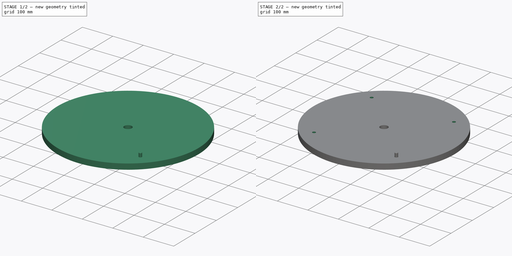
[diagram: build sequence overview — one tinted view per stage of 2, left to right]
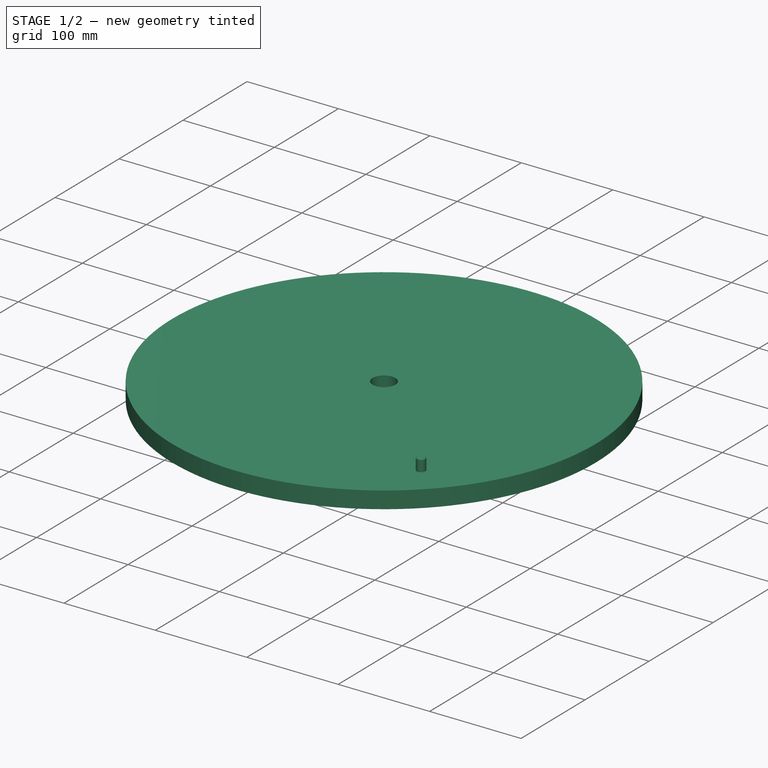
[diagram: stage 1 of 2 — iso view after this stage's code; geometry added in this stage tinted green]
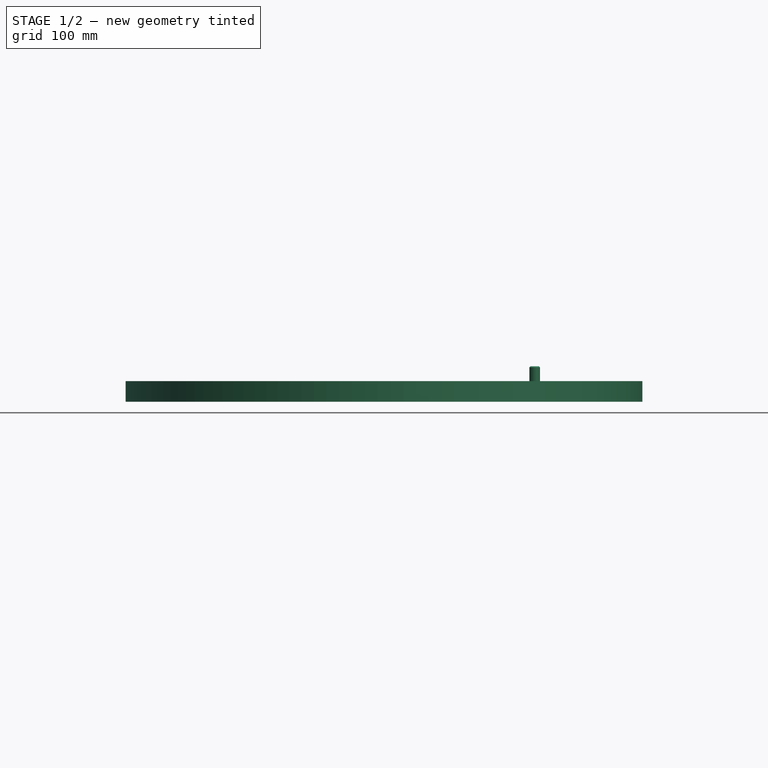
[diagram: stage 1 of 2 — front view after this stage's code; geometry added in this stage tinted green]
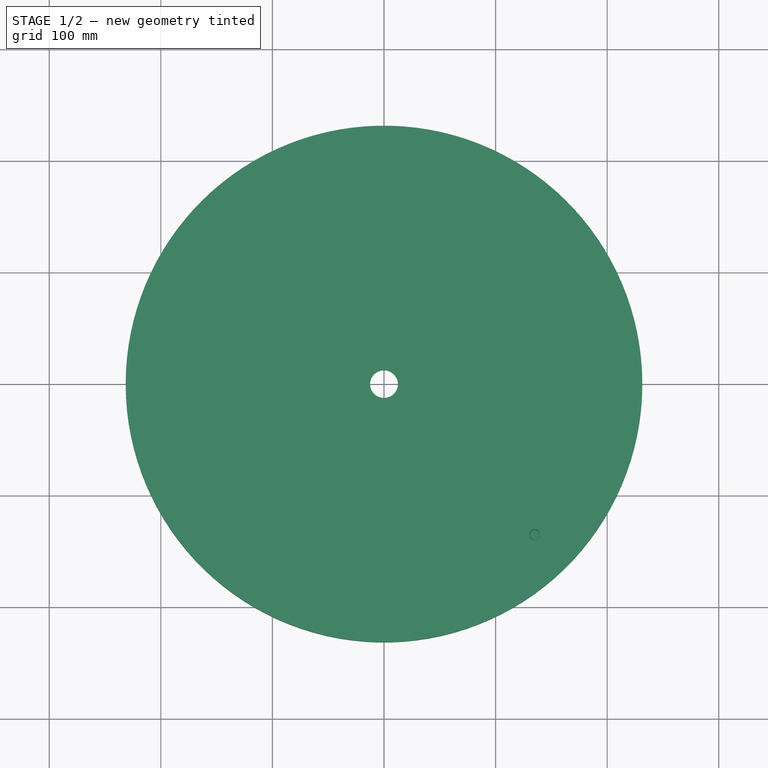
[diagram: stage 1 of 2 — top view after this stage's code; geometry added in this stage tinted green]
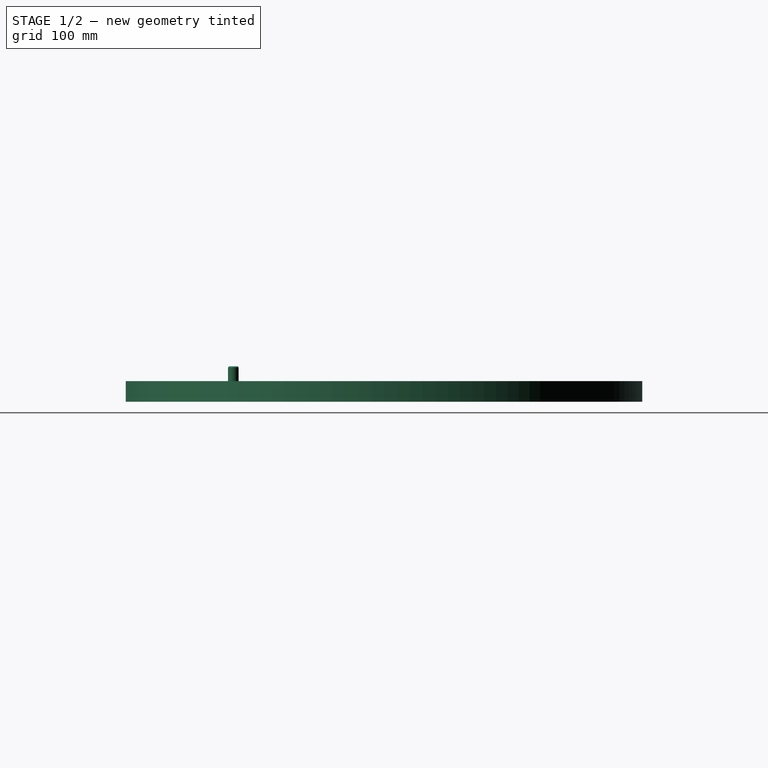
[diagram: stage 1 of 2 — right view after this stage's code; geometry added in this stage tinted green]
FCSTD DOCUMENT  (FreeCAD 0.20R29177 +426 (Git))
Label: CeilingPlate
License: All rights reserved
LicenseURL: http://en.wikipedia.org/wiki/All_rights_reserved
objects: App::DocumentObjectGroup×4, Sketcher::SketchObject×2, Part::FeaturePython×2, PartDesign::CoordinateSystem×1, App::FeaturePython×1, PartDesign::Pad×1, PartDesign::Hole×1, PartDesign::Body×1, App::Part×1
note: 10 computed .brp shape members not serialized (recipe doc carries the construction recipe); baked Part::Feature solids carry a one-line shape summary decoded from their .brp
EXTERNAL_REF file=Params.FCStd obj=Spreadsheet

FEATURE [App::DocumentObjectGroup] Parts
FEATURE [PartDesign::CoordinateSystem] LCS_Origin
  AttacherType = Attacher::AttachEngine3D
  MapMode = 2
  Support = -> [X_Axis]
FEATURE [App::FeaturePython] Variables  # WARN: FeaturePython — macro-defined, semantics opaque (R4)
  Type = App::PropertyContainer
FEATURE [App::DocumentObjectGroup] Constraints
FEATURE [App::DocumentObjectGroup] Configurations
FEATURE [Sketcher::SketchObject] Sketch
  FullyConstrained = true
  MapMode = 5
  Support = -> [XY_Plane001]
  expr: .Constraints.Diameter = <<Params>>#<<Params>>.CeilingPlateDiameter
  sketch-geometry (2):
    g0: Circle CenterX=0 CenterY=0 CenterZ=0 NormalX=0 NormalY=0 NormalZ=1 AngleXU=0 Radius=12.5
    g1: Circle CenterX=0 CenterY=0 CenterZ=0 NormalX=0 NormalY=0 NormalZ=1 AngleXU=0 Radius=231.5
  constraints (4):
    c: Coincident(g0,g-1)
    c: Coincident(g1,g0)
    c: Diameter(g1) = 463  'Diameter'
    c: Diameter(g0) = 25
FEATURE [PartDesign::Pad] Pad
  Direction = (0,0,1)
  Length = 18.5
  Length2 = 10
  Profile = -> Sketch
  ReferenceAxis = -> Sketch [N_Axis]
  Type = 0
  expr: Length = <<Params>>#<<Params>>.PlywoodThickness
FEATURE [PartDesign::Body] Body
  Group = -> [Sketch,Pad,Sketch001,Hole]
  Origin = -> Origin001
  Tip = -> Hole
FEATURE [Part::FeaturePython] Screw  label="3/8inx1 1/4in-Screw"  # Fasteners workbench fastener (typed FeaturePython)
  Placement = pos=(135.057,-135.057,0) rot=(1,0,0;3.14159rad)
  baseObject = -> Sketch001 [Edge4]
  diameter = 12
  invert = true
  leftHanded = false
  length = 3
  lengthCustom = 31.75
  matchOuter = false
  offset = 0
  thread = false
  type = 3
FEATURE [Part::FeaturePython] Array_Screw  label="Array_3/8inx1 1/4in-Screw"  # Draft array (typed FeaturePython)
  ArraySteps = 0
  ArrayType = Circular Array
  Axis = LCS_Origin.Z
  Count = 4
  ElementCount = 4
  FullAngle = 360
  IntervalAngle = 90
  LinearSteps = 0
  PlacementList = 4 placements: [(135.057,-135.057,0),(135.057,135.057,0),(-135.057,135.057,0),(-135.057,-135.057,0)]
  ScaleList = (4) [(1,1,1),(1,1,1),(1,1,1),(1,1,1)]
  ShowElement = false
  SourceObject = -> Screw
FEATURE [App::DocumentObjectGroup] Fasteners
  Group = -> [Screw,Array_Screw]
FEATURE [App::Part] Assembly
  AssemblyType = Part::Link
  Group = -> [LCS_Origin,Variables,Constraints,Configurations,Body,Fasteners,Screw,Array_Screw]
  Origin = -> Origin
  Type = Assembly
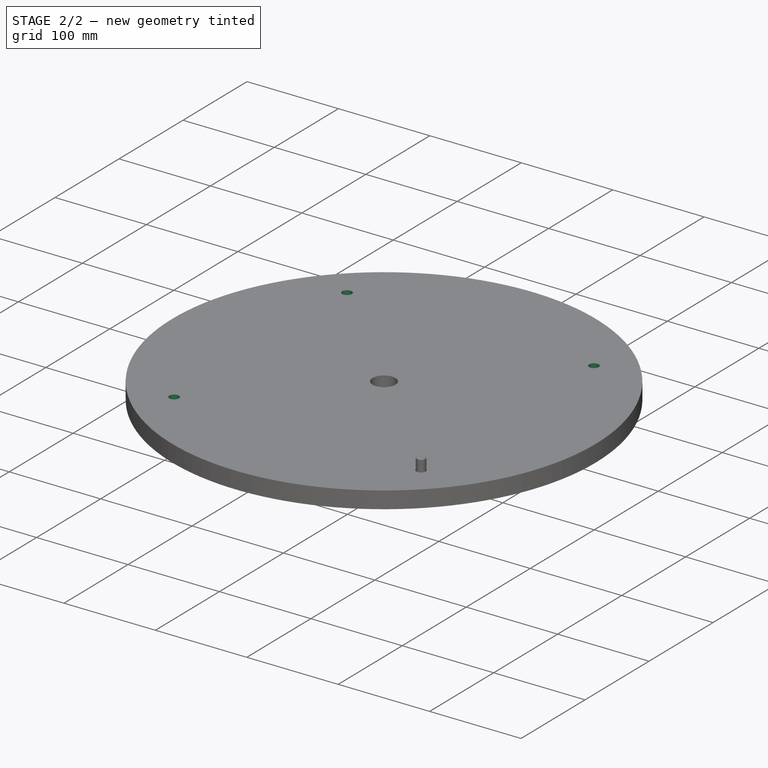
[diagram: stage 2 of 2 — iso view after this stage's code; geometry added in this stage tinted green]
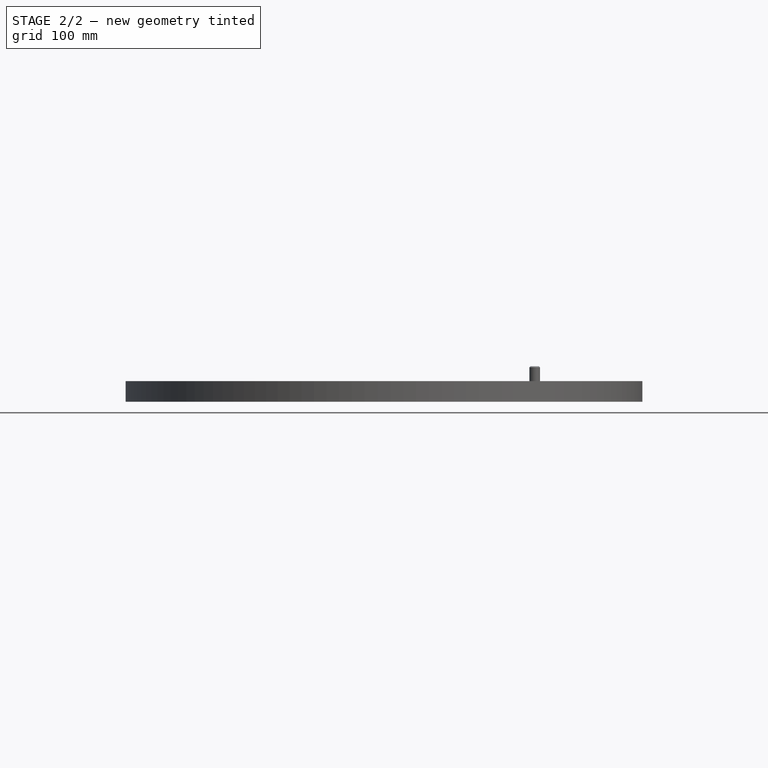
[diagram: stage 2 of 2 — front view after this stage's code; geometry added in this stage tinted green]
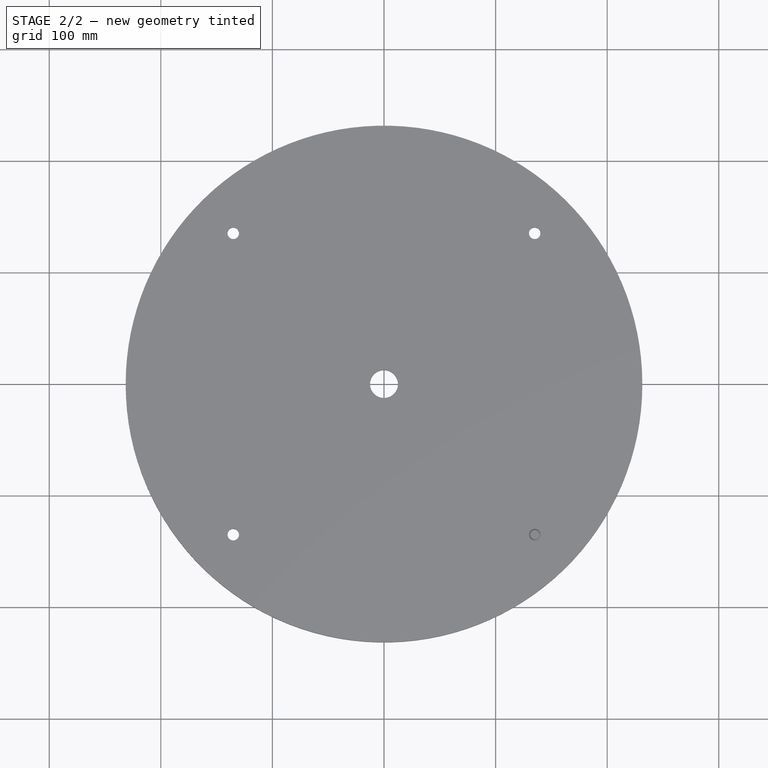
[diagram: stage 2 of 2 — top view after this stage's code; geometry added in this stage tinted green]
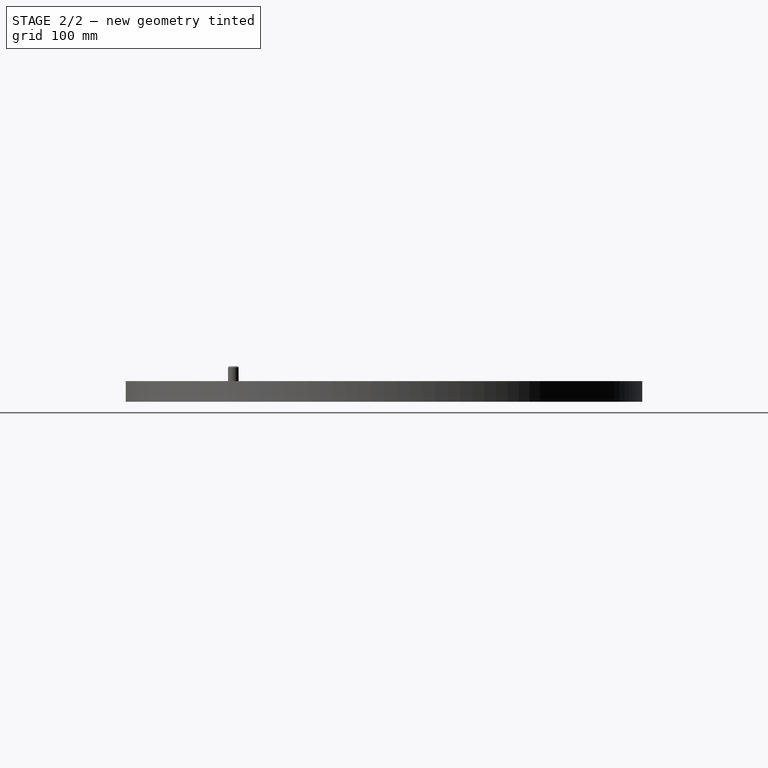
[diagram: stage 2 of 2 — right view after this stage's code; geometry added in this stage tinted green]
FEATURE [Sketcher::SketchObject] Sketch001
  FullyConstrained = true
  MapMode = 5
  Support = -> [XY_Plane001]
  expr: Constraints[15] = <<Params>>#<<Params>>.TableRollerDriveSupportRadius
  expr: Constraints[16] = <<Params>>#<<Params>>.TableRollerSideRadius
  sketch-geometry (12):
    g0: Circle CenterX=135.057 CenterY=135.057 CenterZ=0 NormalX=0 NormalY=0 NormalZ=1 AngleXU=0 Radius=2.5
    g1: LineSegment StartX=-135.057 StartY=-135.057 StartZ=0 EndX=-135.057 EndY=135.057 EndZ=0
    g2: LineSegment StartX=-135.057 StartY=135.057 StartZ=0 EndX=135.057 EndY=135.057 EndZ=0
    g3: LineSegment StartX=135.057 StartY=135.057 StartZ=0 EndX=135.057 EndY=-135.057 EndZ=0
    g4: LineSegment StartX=135.057 StartY=-135.057 StartZ=0 EndX=-135.057 EndY=-135.057 EndZ=0
    g5: GeomPoint X=0 Y=0 Z=0
    g6: Circle CenterX=0 CenterY=0 CenterZ=0 NormalX=0 NormalY=0 NormalZ=1 AngleXU=0 Radius=218
    g7: Circle CenterX=0 CenterY=0 CenterZ=0 NormalX=0 NormalY=0 NormalZ=1 AngleXU=0 Radius=164
    g8: LineSegment StartX=115.966 StartY=115.966 StartZ=0 EndX=154.149 EndY=154.149 EndZ=0
    g9: Circle CenterX=-135.057 CenterY=135.057 CenterZ=0 NormalX=0 NormalY=0 NormalZ=1 AngleXU=0 Radius=2.5
    g10: Circle CenterX=-135.057 CenterY=-135.057 CenterZ=0 NormalX=0 NormalY=0 NormalZ=1 AngleXU=0 Radius=2.5
    g11: Circle CenterX=135.057 CenterY=-135.057 CenterZ=0 NormalX=0 NormalY=0 NormalZ=1 AngleXU=0 Radius=2.5
  constraints (28):
    c: Coincident(g1,g2)
    c: Coincident(g2,g3)
    c: Coincident(g3,g4)
    c: Coincident(g4,g1)
    c: Horizontal(g2)
    c: Horizontal(g4)
    c: Vertical(g1)
    c: Vertical(g3)
    c: Symmetric(g2,g1,g5)
    c: Coincident(g5,g-1)
    c: Coincident(g2,g0)
    c: Equal(g3,g2)
    c: Diameter(g0) = 5
    c: Coincident(g6,g5)
    c: Coincident(g7,g5)
    c: Radius(g6) = 218
    c: Radius(g7) = 164
    c: PointOnObject(g8,g7)
    c: PointOnObject(g8,g6)
    c: PointOnObject(g5,g8)
    c: Symmetric(g8,g8,g0)
    c: Coincident(g9,g1)
    c: Coincident(g10,g1)
    c: Coincident(g11,g3)
    c: Equal(g10,g11)
    c: Equal(g11,g9)
    c: Equal(g9,g0)
    c: DistanceX(g2,g2) = 270.115  'CeilingRailSpacing'
FEATURE [PartDesign::Hole] Hole  label="MountHoles"
  BaseFeature = -> Pad
  CustomThreadClearance = 0
  Depth = 1342.04
  DepthType = 1
  Diameter = 10.3
  DrillForDepth = false
  DrillPoint = 1
  DrillPointAngle = 118
  HoleCutCountersinkAngle = 82
  HoleCutCustomValues = false
  HoleCutDepth = 1.5
  HoleCutDiameter = 20.3
  HoleCutType = 2
  ModelThread = false
  Profile = -> Sketch001
  Reversed = true
  Tapered = false
  TaperedAngle = 90
  ThreadClass = 0
  ThreadDepth = 1342.04
  ThreadDepthType = 0
  ThreadDirection = 0
  ThreadFit = 0
  ThreadSize = 11
  ThreadType = 3
  Threaded = false
  UseCustomThreadClearance = false
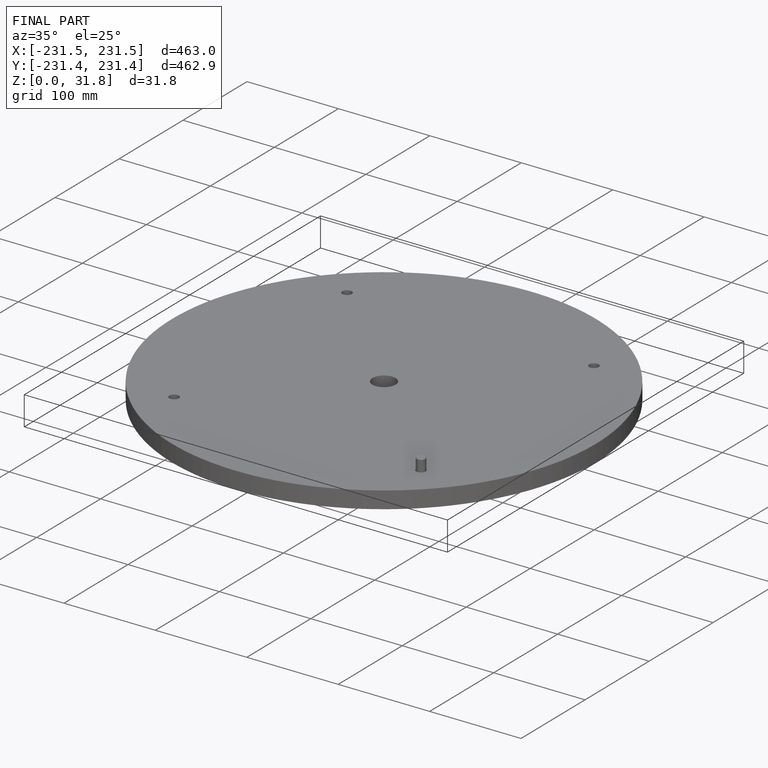
[diagram: finished part — iso view with bounding-box wireframe]
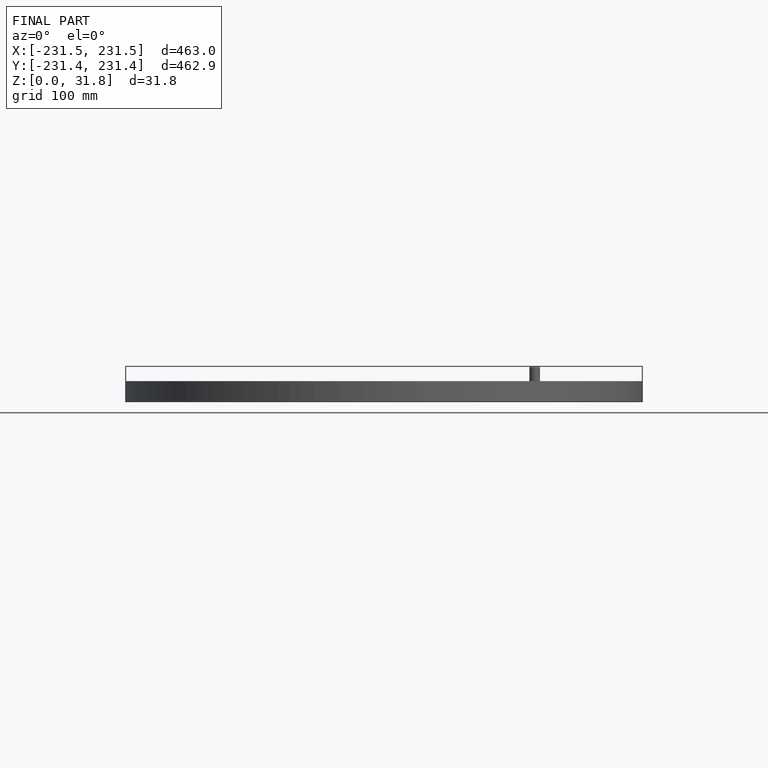
[diagram: finished part — front view with bounding-box wireframe]
